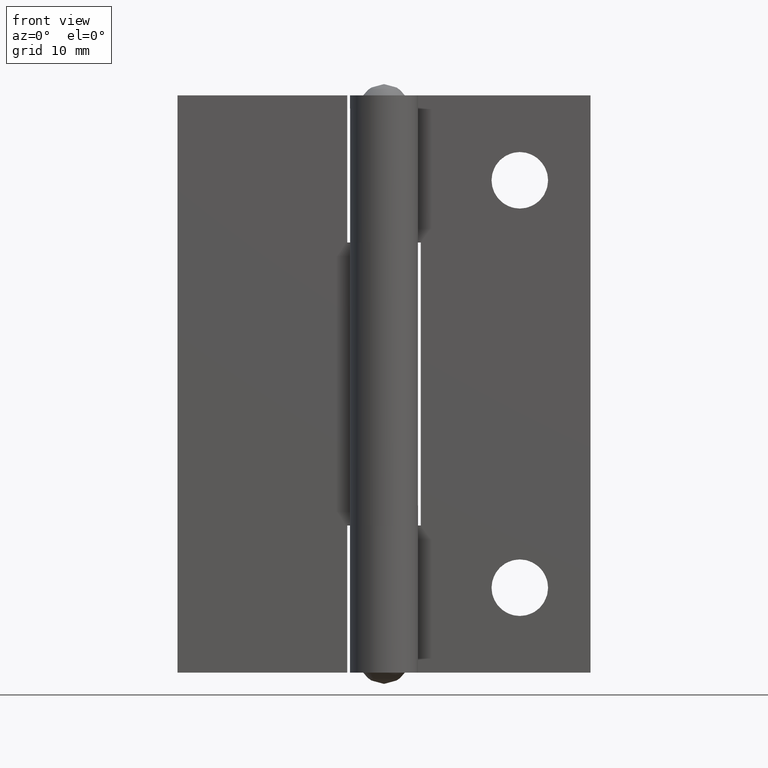
[diagram: clean part render]
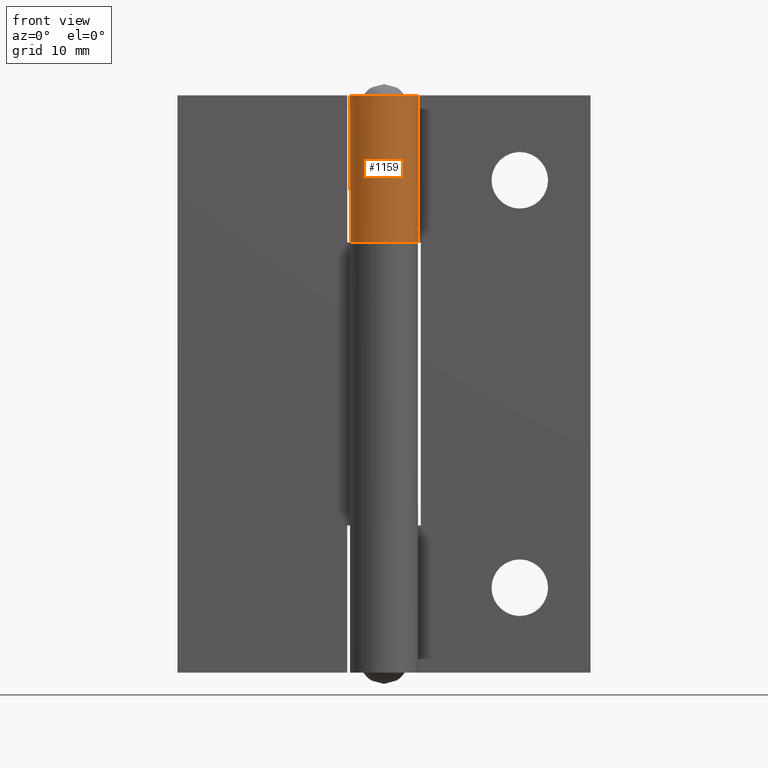
[diagram: same view with one face highlighted and labeled with its STEP entity id]
A machine part, front view. The second image highlights one B-rep face of the part: STEP entity #1159.
In plain terms, the highlighted face is a freeform B-spline surface patch.
Its self-contained STEP definition (entity closure, byte-faithful):
#1038=CARTESIAN_POINT('',(0.026179623948190,2.999887769116359,51.324992000000101));
#1039=CARTESIAN_POINT('',(0.026179623948190,2.999887769116359,37.666867000000032));
#1040=CARTESIAN_POINT('',(-3.700486453115087,3.032409891271191,51.324992000000108));
#1041=CARTESIAN_POINT('',(-3.700486453115087,3.032409891271191,37.666867000000032));
#1042=CARTESIAN_POINT('',(-2.936246713893745,-0.615196907625661,51.324992000000101));
#1043=CARTESIAN_POINT('',(-2.936246713893745,-0.615196907625661,37.666867000000032));
#1044=CARTESIAN_POINT('',(-2.172006974672402,-4.262803706522516,51.324992000000108));
#1045=CARTESIAN_POINT('',(-2.172006974672402,-4.262803706522516,37.666867000000032));
#1046=CARTESIAN_POINT('',(1.228177762362906,-2.737077160775932,51.324992000000101));
#1047=CARTESIAN_POINT('',(1.228177762362906,-2.737077160775932,37.666867000000032));
#1048=CARTESIAN_POINT('',(4.628362499398214,-1.211350615029349,51.324992000000108));
#1049=CARTESIAN_POINT('',(4.628362499398214,-1.211350615029349,37.666867000000032));
#1050=CARTESIAN_POINT('',(2.411572189565374,1.784469549899595,51.324992000000101));
#1051=CARTESIAN_POINT('',(2.411572189565374,1.784469549899595,37.666867000000032));
#1059=(BOUNDED_SURFACE()B_SPLINE_SURFACE(1,2,((#1038,#1040,#1042,#1044,#1046,#1048,#1050),(#1039,#1041,#1043,#1045,#1047,#1049,#1051)),.UNSPECIFIED.,.F.,.F.,.U.)B_SPLINE_SURFACE_WITH_KNOTS((2,2),(3,2,2,3),(0.0,13.658125000000069),(0.0,5.745149125795100,11.490298251590200,17.235447377385299),.UNSPECIFIED.)GEOMETRIC_REPRESENTATION_ITEM()RATIONAL_B_SPLINE_SURFACE(((1.0,0.627057105746662,1.0,0.627057105746662,1.0,0.627057105746662,1.0),(1.0,0.627057105746662,1.0,0.627057105746662,1.0,0.627057105746662,1.0)))REPRESENTATION_ITEM('')SURFACE());
#1060=CARTESIAN_POINT('',(0.0,3.000002000000000,50.999992000000098));
#1061=VERTEX_POINT('',#1060);
#1062=CARTESIAN_POINT('',(0.0,3.000002000000000,37.999992000000049));
#1063=VERTEX_POINT('',#1062);
#1064=CARTESIAN_POINT('',(0.0,3.000002000000000,50.999992000000098));
#1065=CARTESIAN_POINT('',(0.0,3.000002000000000,37.999992000000049));
#1066=QUASI_UNIFORM_CURVE('',1,(#1064,#1065),.UNSPECIFIED.,.F.,.U.);
#1067=EDGE_CURVE('',#1061,#1063,#1066,.T.);
#1068=ORIENTED_EDGE('',*,*,#1067,.T.);
#1069=CARTESIAN_POINT('',(-1.423025470731811,-2.641024518941940,37.999992000000042));
#1070=VERTEX_POINT('',#1069);
#1071=CARTESIAN_POINT('',(0.0,3.000002000000000,37.999992000000049));
#1072=CARTESIAN_POINT('',(-0.237851454067721,3.000058313622446,37.999991999999992));
#1073=CARTESIAN_POINT('',(-0.620448161754613,2.954244981743617,37.999992000000127));
#1074=CARTESIAN_POINT('',(-1.193122322535553,2.770668145979052,37.999991999999992));
#1075=CARTESIAN_POINT('',(-1.670095992923946,2.515522724342420,37.999992000000212));
#1076=CARTESIAN_POINT('',(-2.063140587447524,2.192593774662797,37.999992000000013));
#1077=CARTESIAN_POINT('',(-2.432685884503413,1.786597791609758,37.999992000000063));
#1078=CARTESIAN_POINT('',(-2.744463906814390,1.280558116819582,37.999991999999892));
#1079=CARTESIAN_POINT('',(-2.943800245693053,0.667184350110935,37.999992000000063));
#1080=CARTESIAN_POINT('',(-3.022787217158394,0.028692226137947,37.999992000000113));
#1081=CARTESIAN_POINT('',(-2.967211552536107,-0.594512269370108,37.999991999999878));
#1082=CARTESIAN_POINT('',(-2.782782283521206,-1.157391992292441,37.999991999999992));
#1083=CARTESIAN_POINT('',(-2.542570443084876,-1.616596285330956,37.999991999999963));
#1084=CARTESIAN_POINT('',(-2.144455750914452,-2.148923599086967,37.999992000000120));
#1085=CARTESIAN_POINT('',(-1.723607350950180,-2.479353269561141,37.999991999999992));
#1086=CARTESIAN_POINT('',(-1.423025470731811,-2.641024518941940,37.999992000000042));
#1087=B_SPLINE_CURVE_WITH_KNOTS('',3,(#1071,#1072,#1073,#1074,#1075,#1076,#1077,#1078,#1079,#1080,#1081,#1082,#1083,#1084,#1085,#1086),.UNSPECIFIED.,.F.,.U.,(4,1,1,1,1,1,1,1,1,1,1,1,1,4),(0.000000144268328,0.713540141813250,1.147885989234191,1.799398825419180,2.326816116789497,2.668080367282540,3.443704659124141,4.095148503882427,4.591561168393884,5.367158933418251,5.956629260464505,6.359950838123547,6.918380481155219,7.942170993323503),.UNSPECIFIED.);
#1088=EDGE_CURVE('',#1063,#1070,#1087,.T.);
#1089=ORIENTED_EDGE('',*,*,#1088,.T.);
#1090=CARTESIAN_POINT('',(2.505495699458095,1.650001000000000,37.999992000000049));
#1091=VERTEX_POINT('',#1090);
#1092=CARTESIAN_POINT('',(-1.423025470731811,-2.641024518941940,37.999992000000042));
#1093=CARTESIAN_POINT('',(-1.177269703328892,-2.773569250764275,37.999992000000020));
#1094=CARTESIAN_POINT('',(-0.677783623778803,-2.958303627396075,37.999992000000127));
#1095=CARTESIAN_POINT('',(0.017543635570223,-3.021735918030836,37.999992000000077));
#1096=CARTESIAN_POINT('',(0.553525361169473,-2.959235633785586,37.999991999999907));
#1097=CARTESIAN_POINT('',(1.024057383810857,-2.833731415967433,37.999992000000297));
#1098=CARTESIAN_POINT('',(1.526724050104444,-2.608695350824737,37.999991999999793));
#1099=CARTESIAN_POINT('',(2.013435606617227,-2.251578429836282,37.999992000000020));
#1100=CARTESIAN_POINT('',(2.459567186394637,-1.759221137825556,37.999991999999693));
#1101=CARTESIAN_POINT('',(2.749230464211979,-1.252185284715967,37.999992000000120));
#1102=CARTESIAN_POINT('',(2.927090365275254,-0.710341923201841,37.999992000000120));
#1103=CARTESIAN_POINT('',(3.021059223087677,-0.136867763239488,37.999991999999850));
#1104=CARTESIAN_POINT('',(2.989501757688287,0.436176885658716,37.999992000000113));
#1105=CARTESIAN_POINT('',(2.821096010406423,1.077807191026955,37.999992000000027));
#1106=CARTESIAN_POINT('',(2.647750275682516,1.434121646596670,37.999992000000020));
#1107=CARTESIAN_POINT('',(2.505495699458095,1.650001000000000,37.999992000000049));
#1108=B_SPLINE_CURVE_WITH_KNOTS('',3,(#1092,#1093,#1094,#1095,#1096,#1097,#1098,#1099,#1100,#1101,#1102,#1103,#1104,#1105,#1106,#1107),.UNSPECIFIED.,.F.,.U.,(4,1,1,1,1,1,1,1,1,1,1,1,1,4),(0.000000144267478,0.837627328131797,1.582230093926949,2.078616740432060,2.450909464788238,3.040375478270464,3.722893679370134,4.250270190867211,5.025894453548833,5.460239691316920,5.956628446452682,6.763257277966998,7.166589189495311,7.942169907975125),.UNSPECIFIED.);
#1109=EDGE_CURVE('',#1070,#1091,#1108,.T.);
#1110=ORIENTED_EDGE('',*,*,#1109,.T.);
#1111=CARTESIAN_POINT('',(2.505495699458095,1.650001000000000,50.999992000000098));
#1112=VERTEX_POINT('',#1111);
#1113=CARTESIAN_POINT('',(2.505495699458095,1.650001000000000,50.999992000000098));
#1114=CARTESIAN_POINT('',(2.505495699458095,1.650001000000000,37.999992000000049));
#1115=QUASI_UNIFORM_CURVE('',1,(#1113,#1114),.UNSPECIFIED.,.F.,.U.);
#1116=EDGE_CURVE('',#1112,#1091,#1115,.T.);
#1117=ORIENTED_EDGE('',*,*,#1116,.F.);
#1118=CARTESIAN_POINT('',(-1.423026426195538,-2.641024004122861,50.999992000000098));
#1119=VERTEX_POINT('',#1118);
#1120=CARTESIAN_POINT('',(2.505495699458095,1.650001000000000,50.999992000000098));
#1121=CARTESIAN_POINT('',(2.659152867423390,1.416859203879268,50.999992000000113));
#1122=CARTESIAN_POINT('',(2.842409988971141,1.029959300309058,50.999992000000127));
#1123=CARTESIAN_POINT('',(2.991827349001631,0.394045905489076,50.999992000000027));
#1124=CARTESIAN_POINT('',(3.015977988269710,-0.146651768273965,50.999992000000681));
#1125=CARTESIAN_POINT('',(2.937437153805525,-0.659525993147156,50.999991999999793));
#1126=CARTESIAN_POINT('',(2.795099217241126,-1.125245056279261,50.999991999999970));
#1127=CARTESIAN_POINT('',(2.588785417976174,-1.544883441037424,50.999992000000731));
#1128=CARTESIAN_POINT('',(2.290458453552381,-1.956113088225820,50.999991999999359));
#1129=CARTESIAN_POINT('',(1.909965303193698,-2.338706159935538,50.999992000000368));
#1130=CARTESIAN_POINT('',(1.348458181959766,-2.716104825608401,50.999991999999871));
#1131=CARTESIAN_POINT('',(0.668748293163670,-2.955181493696877,50.999992000000390));
#1132=CARTESIAN_POINT('',(-0.045409854435676,-3.023366641162279,50.999992000000127));
#1133=CARTESIAN_POINT('',(-0.737593954270076,-2.938521897642977,50.999992000000013));
#1134=CARTESIAN_POINT('',(-1.195465102598596,-2.763726289994385,50.999992000000162));
#1135=CARTESIAN_POINT('',(-1.423026426195538,-2.641024004122861,50.999992000000098));
#1136=B_SPLINE_CURVE_WITH_KNOTS('',3,(#1120,#1121,#1122,#1123,#1124,#1125,#1126,#1127,#1128,#1129,#1130,#1131,#1132,#1133,#1134,#1135),.UNSPECIFIED.,.F.,.U.,(4,1,1,1,1,1,1,1,1,1,1,1,1,4),(0.000000144268168,0.837627442590821,1.271975226150510,1.954519380402248,2.450909799725148,2.823207461734858,3.412660609565127,3.847023008365821,4.343348167258050,5.025895140359158,5.863554995786882,6.484044889008764,7.166590168866425,7.942170993323497),.UNSPECIFIED.);
#1137=EDGE_CURVE('',#1112,#1119,#1136,.T.);
#1138=ORIENTED_EDGE('',*,*,#1137,.T.);
#1139=CARTESIAN_POINT('',(-1.423026426195538,-2.641024004122861,50.999992000000098));
#1140=CARTESIAN_POINT('',(-1.668875942504498,-2.508661645314430,50.999992000000141));
#1141=CARTESIAN_POINT('',(-2.114747456830216,-2.180787028216572,50.999991999999821));
#1142=CARTESIAN_POINT('',(-2.577145240081086,-1.588613147772331,50.999992000000262));
#1143=CARTESIAN_POINT('',(-2.867495258291966,-0.955792319444125,50.999991999999963));
#1144=CARTESIAN_POINT('',(-3.009516602501264,-0.315613841695883,50.999992000000461));
#1145=CARTESIAN_POINT('',(-3.003868907910240,0.288034164459387,50.999991999999637));
#1146=CARTESIAN_POINT('',(-2.885120578597633,0.888138139748742,50.999992000000070));
#1147=CARTESIAN_POINT('',(-2.661247806697586,1.437920595448713,50.999992000000383));
#1148=CARTESIAN_POINT('',(-2.256779567120800,2.017800141433506,50.999991999999857));
#1149=CARTESIAN_POINT('',(-1.782399960473849,2.441574923780686,50.999992000000177));
#1150=CARTESIAN_POINT('',(-1.304256409576121,2.713366286692949,50.999992000000098));
#1151=CARTESIAN_POINT('',(-0.744482684874704,2.932003741107711,50.999992000000113));
#1152=CARTESIAN_POINT('',(-0.310262129782240,3.000182831917522,50.999992000000098));
#1153=CARTESIAN_POINT('',(0.0,3.000002000000000,50.999992000000098));
#1154=B_SPLINE_CURVE_WITH_KNOTS('',3,(#1139,#1140,#1141,#1142,#1143,#1144,#1145,#1146,#1147,#1148,#1149,#1150,#1151,#1152,#1153),.UNSPECIFIED.,.F.,.U.,(4,1,1,1,1,1,1,1,1,1,1,1,4),(0.000000144266162,0.837627328130787,1.644275308182976,2.233738456361262,2.916285883290795,3.598826527052835,4.033108445641542,4.746685972507246,5.367158199966179,6.142776790865232,6.639169852867497,7.011464998687607,7.942169907975120),.UNSPECIFIED.);
#1155=EDGE_CURVE('',#1119,#1061,#1154,.T.);
#1156=ORIENTED_EDGE('',*,*,#1155,.T.);
#1157=EDGE_LOOP('',(#1068,#1089,#1110,#1117,#1138,#1156));
#1158=FACE_OUTER_BOUND('',#1157,.T.);
#1159=ADVANCED_FACE('',(#1158),#1059,.T.);